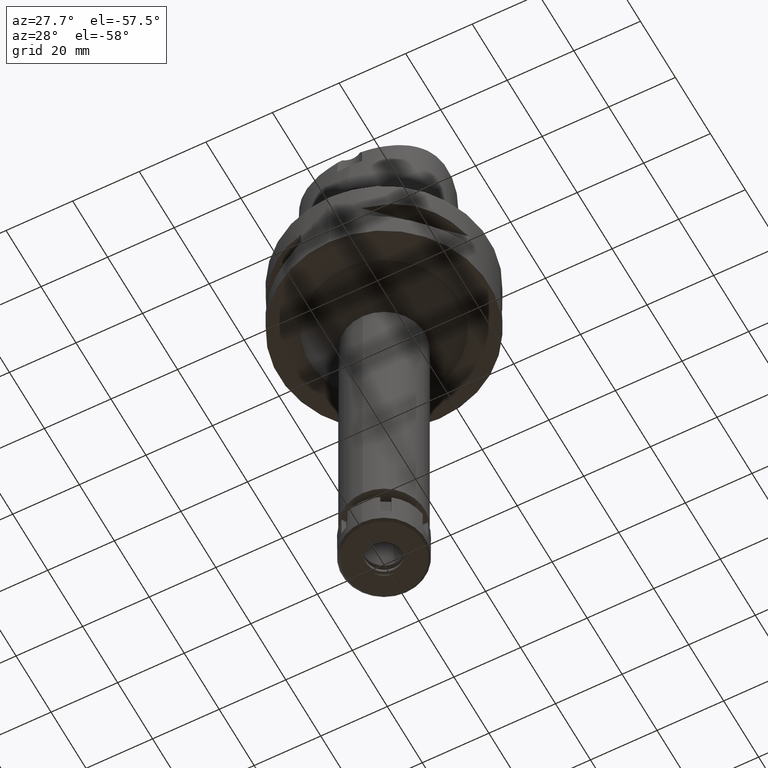
[diagram: clean part render]
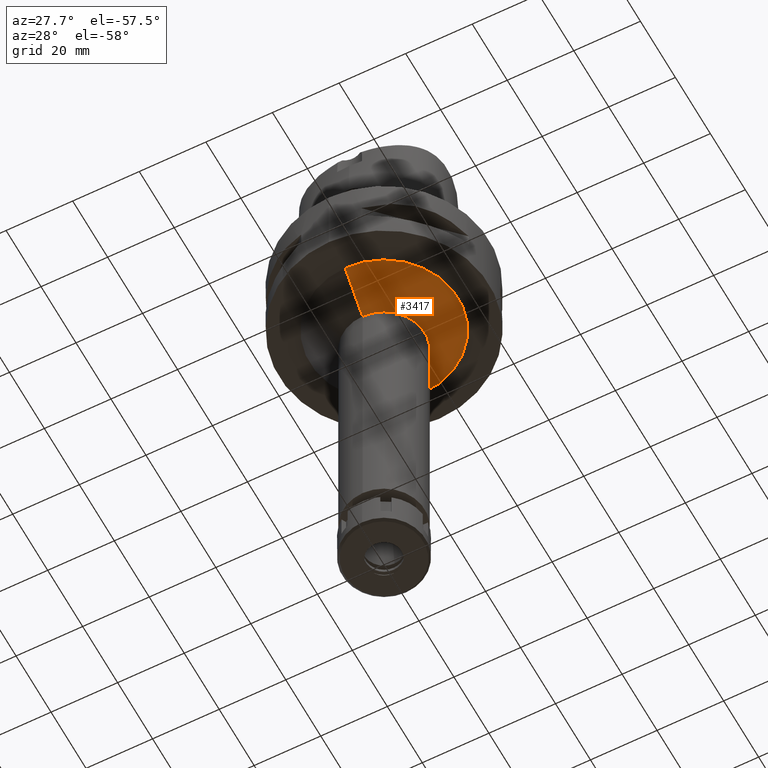
[diagram: same view with one face highlighted and labeled with its STEP entity id]
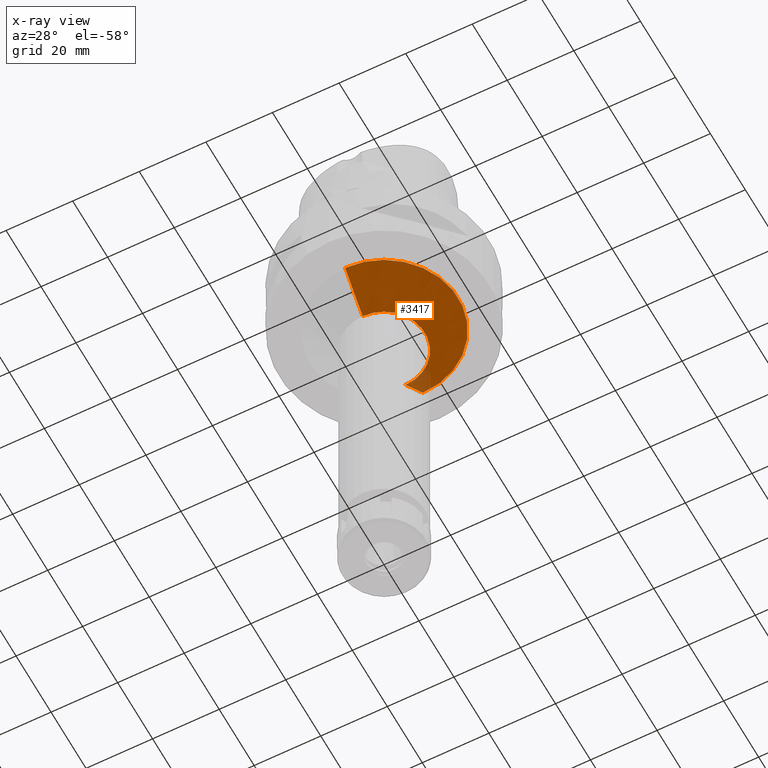
[diagram: x-ray of the same camera — body ghosted, the highlighted face saturated]
A machine part, auxiliary view. The second image highlights one B-rep face of the part: STEP entity #3417.
The next image is the same camera in x-ray: the body ghosted, the highlighted face saturated — about 4% of this face is hidden behind the body in this view.
In plain terms, the highlighted conical surface has half-angle 45 deg.
Its self-contained STEP definition (entity closure, byte-faithful):
#12 = DIRECTION ( 'NONE',  ( 0.0000000000000000000, -0.7071067811865474617, -0.7071067811865474617 ) ) ;
#122 = CARTESIAN_POINT ( 'NONE',  ( 0.0000000000000000000, 12.25000000000000000, -32.00000000000000000 ) ) ;
#127 = DIRECTION ( 'NONE',  ( 0.0000000000000000000, 1.000000000000000000, 0.0000000000000000000 ) ) ;
#607 = DIRECTION ( 'NONE',  ( 0.0000000000000000000, 0.0000000000000000000, -1.000000000000000000 ) ) ;
#648 = CARTESIAN_POINT ( 'NONE',  ( 0.0000000000000000000, 0.0000000000000000000, -22.00000000000000000 ) ) ;
#779 = AXIS2_PLACEMENT_3D ( 'NONE', #4046, #1086, #127 ) ;
#849 = AXIS2_PLACEMENT_3D ( 'NONE', #5311, #607, #4888 ) ;
#1048 = ORIENTED_EDGE ( 'NONE', *, *, #1231, .F. ) ;
#1086 = DIRECTION ( 'NONE',  ( 0.0000000000000000000, 0.0000000000000000000, 1.000000000000000000 ) ) ;
#1182 = LINE ( 'NONE', #1969, #1485 ) ;
#1231 = EDGE_CURVE ( 'NONE', #4336, #4276, #4446, .T. ) ;
#1435 = ORIENTED_EDGE ( 'NONE', *, *, #2865, .T. ) ;
#1485 = VECTOR ( 'NONE', #3357, 1000.000000000000114 ) ;
#1750 = EDGE_LOOP ( 'NONE', ( #5552, #1435, #1048, #2895 ) ) ;
#1969 = CARTESIAN_POINT ( 'NONE',  ( 0.0000000000000000000, -22.25000000000000000, -22.00000000000000000 ) ) ;
#2184 = CARTESIAN_POINT ( 'NONE',  ( 0.0000000000000000000, 22.25000000000000000, -22.00000000000000000 ) ) ;
#2269 = VERTEX_POINT ( 'NONE', #3322 ) ;
#2301 = FACE_OUTER_BOUND ( 'NONE', #1750, .T. ) ;
#2405 = DIRECTION ( 'NONE',  ( 0.0000000000000000000, 1.000000000000000000, 0.0000000000000000000 ) ) ;
#2581 = CONICAL_SURFACE ( 'NONE', #779, 17.25000000000000000, 0.7853981633972997312 ) ;
#2865 = EDGE_CURVE ( 'NONE', #4639, #4276, #1182, .T. ) ;
#2895 = ORIENTED_EDGE ( 'NONE', *, *, #5535, .F. ) ;
#3143 = VECTOR ( 'NONE', #12, 1000.000000000000114 ) ;
#3322 = CARTESIAN_POINT ( 'NONE',  ( 0.0000000000000000000, 22.25000000000000000, -22.00000000000000000 ) ) ;
#3357 = DIRECTION ( 'NONE',  ( 0.0000000000000000000, 0.7071067811865474617, -0.7071067811865474617 ) ) ;
#3417 = ADVANCED_FACE ( 'NONE', ( #2301 ), #2581, .T. ) ;
#3541 = CARTESIAN_POINT ( 'NONE',  ( 0.0000000000000000000, -12.25000000000000000, -32.00000000000000000 ) ) ;
#3564 = CIRCLE ( 'NONE', #4647, 22.25000000000000000 ) ;
#4046 = CARTESIAN_POINT ( 'NONE',  ( 0.0000000000000000000, 0.0000000000000000000, -27.00000000000000000 ) ) ;
#4274 = DIRECTION ( 'NONE',  ( 0.0000000000000000000, 0.0000000000000000000, -1.000000000000000000 ) ) ;
#4276 = VERTEX_POINT ( 'NONE', #3541 ) ;
#4336 = VERTEX_POINT ( 'NONE', #122 ) ;
#4446 = CIRCLE ( 'NONE', #849, 12.25000000000000000 ) ;
#4639 = VERTEX_POINT ( 'NONE', #5492 ) ;
#4647 = AXIS2_PLACEMENT_3D ( 'NONE', #648, #4274, #2405 ) ;
#4888 = DIRECTION ( 'NONE',  ( 0.0000000000000000000, 1.000000000000000000, 0.0000000000000000000 ) ) ;
#5285 = LINE ( 'NONE', #2184, #3143 ) ;
#5311 = CARTESIAN_POINT ( 'NONE',  ( 0.0000000000000000000, 0.0000000000000000000, -32.00000000000000000 ) ) ;
#5459 = EDGE_CURVE ( 'NONE', #2269, #4639, #3564, .T. ) ;
#5492 = CARTESIAN_POINT ( 'NONE',  ( 0.0000000000000000000, -22.25000000000000000, -22.00000000000000000 ) ) ;
#5535 = EDGE_CURVE ( 'NONE', #2269, #4336, #5285, .T. ) ;
#5552 = ORIENTED_EDGE ( 'NONE', *, *, #5459, .T. ) ;